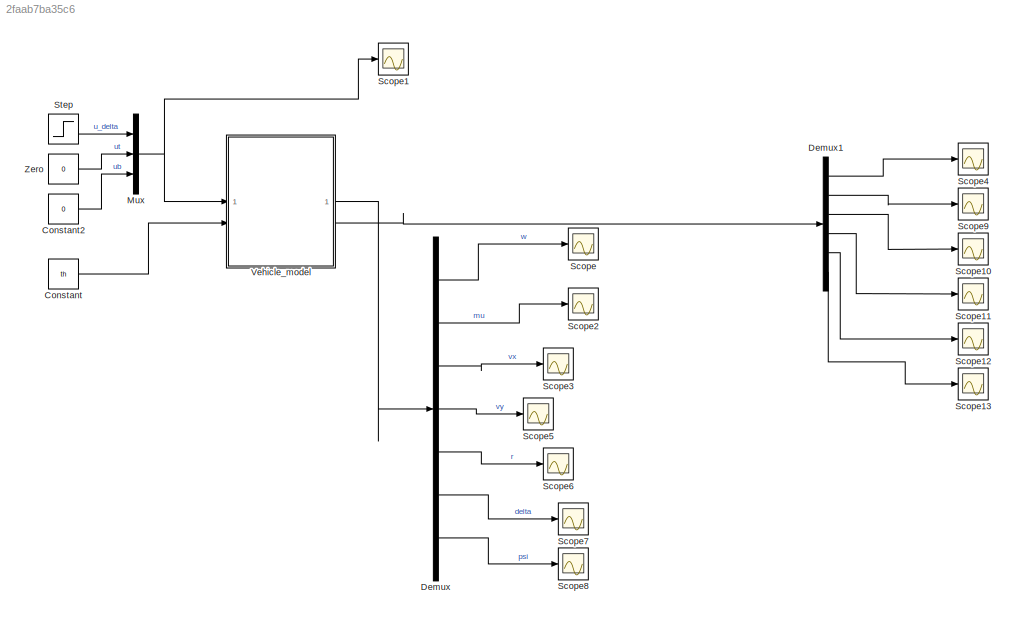
MODEL slx_2faab7ba35c6
KIND model
CONFIG AbsTol = auto
CONFIG EnableMultiTasking = off
CONFIG FixedStep = auto
CONFIG MaxStep = auto
CONFIG MinStep = auto
CONFIG RelTol = 1e-3
CONFIG SampleTimeConstraint = Unconstrained
CONFIG SolverName = VariableStepAuto
CONFIG StartTime = 0.0
CONFIG StopTime = 1.4
BLOCK [Constant] Constant
  Value = th
BLOCK [Constant] Constant2
  Value = 0
BLOCK [Demux] Demux
  Outputs = 7
BLOCK [Demux] Demux1
  Outputs = 6
BLOCK [Mux] Mux
  DisplayOption = bar
  Inputs = 3
BLOCK [Scope] Scope
  Floating = off
  NumInputPorts = 1
  ScopeSpecificationString = Simulink.scopes.TimeScopeBlockCfg('CurrentConfiguration', extmgr.ConfigurationSet(extmgr.Configuration('Core','General UI',true),extmgr.Configuration('Core','Source UI',true),extmgr.Configuration('Sources','WiredSimulink',true),extmgr.Configuration('Visuals','Time Domain',true,'SerializedDisplays',{struct('MinYLimReal','-0.7032','MaxYLimReal','0.07813','YLabelReal','','MinYLimMag','0.00000','MaxYL...<+1343ch>
BLOCK [Scope] Scope1
  Floating = off
  NumInputPorts = 1
  ScopeSpecificationString = Simulink.scopes.TimeScopeBlockCfg('CurrentConfiguration', extmgr.ConfigurationSet(extmgr.Configuration('Core','General UI',true),extmgr.Configuration('Core','Source UI',true),extmgr.Configuration('Sources','WiredSimulink',true,'DataLoggingVariableName','ScopeData1'),extmgr.Configuration('Visuals','Time Domain',true,'SerializedDisplays',{struct('MinYLimReal','-1.00000','MaxYLimReal','1.00000','YLab...<+1508ch>
BLOCK [Scope] Scope10
  Floating = off
  NumInputPorts = 1
  ScopeSpecificationString = Simulink.scopes.TimeScopeBlockCfg('CurrentConfiguration', extmgr.ConfigurationSet(extmgr.Configuration('Core','General UI',true),extmgr.Configuration('Core','Source UI',true),extmgr.Configuration('Sources','WiredSimulink',true,'DataLoggingVariableName','ScopeData3'),extmgr.Configuration('Visuals','Time Domain',true,'SerializedDisplays',{struct('MinYLimReal','-466.54259','MaxYLimReal','279.20196','...<+1381ch>
BLOCK [Scope] Scope11
  Floating = off
  NumInputPorts = 1
  ScopeSpecificationString = Simulink.scopes.TimeScopeBlockCfg('CurrentConfiguration', extmgr.ConfigurationSet(extmgr.Configuration('Core','General UI',true),extmgr.Configuration('Core','Source UI',true),extmgr.Configuration('Sources','WiredSimulink',true,'DataLoggingVariableName','ScopeData4'),extmgr.Configuration('Visuals','Time Domain',true,'SerializedDisplays',{struct('MinYLimReal','-466.54259','MaxYLimReal','279.20196','...<+1381ch>
BLOCK [Scope] Scope12
  Floating = off
  NumInputPorts = 1
  ScopeSpecificationString = Simulink.scopes.TimeScopeBlockCfg('CurrentConfiguration', extmgr.ConfigurationSet(extmgr.Configuration('Core','General UI',true),extmgr.Configuration('Core','Source UI',true),extmgr.Configuration('Sources','WiredSimulink',true,'DataLoggingVariableName','ScopeData5'),extmgr.Configuration('Visuals','Time Domain',true,'SerializedDisplays',{struct('MinYLimReal','-1119.57916','MaxYLimReal','118.72473',...<+1387ch>
BLOCK [Scope] Scope13
  Floating = off
  NumInputPorts = 1
  ScopeSpecificationString = Simulink.scopes.TimeScopeBlockCfg('CurrentConfiguration', extmgr.ConfigurationSet(extmgr.Configuration('Core','General UI',true),extmgr.Configuration('Core','Source UI',true),extmgr.Configuration('Sources','WiredSimulink',true,'DataLoggingVariableName','ScopeData6'),extmgr.Configuration('Visuals','Time Domain',true,'SerializedDisplays',{struct('MinYLimReal','-1119.57916','MaxYLimReal','118.72473',...<+1387ch>
BLOCK [Scope] Scope2
  Floating = off
  NumInputPorts = 1
  ScopeSpecificationString = Simulink.scopes.TimeScopeBlockCfg('CurrentConfiguration', extmgr.ConfigurationSet(extmgr.Configuration('Core','General UI',true),extmgr.Configuration('Core','Source UI',true),extmgr.Configuration('Sources','WiredSimulink',true,'DataLoggingVariableName','ScopeData2'),extmgr.Configuration('Visuals','Time Domain',true,'SerializedDisplays',{struct('MinYLimReal','-0.85281','MaxYLimReal','0.34645','YLab...<+1387ch>
BLOCK [Scope] Scope3
  Floating = off
  NumInputPorts = 1
  ScopeSpecificationString = Simulink.scopes.TimeScopeBlockCfg('CurrentConfiguration', extmgr.ConfigurationSet(extmgr.Configuration('Core','General UI',true),extmgr.Configuration('Core','Source UI',true),extmgr.Configuration('Sources','WiredSimulink',true,'DataLoggingVariableName','ScopeData3'),extmgr.Configuration('Visuals','Time Domain',true,'SerializedDisplays',{struct('MinYLimReal','-26.06896','MaxYLimReal','14.00766','YL...<+1489ch>
BLOCK [Scope] Scope4
  Floating = off
  NumInputPorts = 1
  ScopeSpecificationString = Simulink.scopes.TimeScopeBlockCfg('CurrentConfiguration', extmgr.ConfigurationSet(extmgr.Configuration('Core','General UI',true),extmgr.Configuration('Core','Source UI',true),extmgr.Configuration('Sources','WiredSimulink',true,'DataLoggingVariableName','ScopeData1'),extmgr.Configuration('Visuals','Time Domain',true,'SerializedDisplays',{struct('MinYLimReal','-128.72984','MaxYLimReal','14.30332','Y...<+1405ch>
BLOCK [Scope] Scope5
  Floating = off
  NumInputPorts = 1
  ScopeSpecificationString = Simulink.scopes.TimeScopeBlockCfg('CurrentConfiguration', extmgr.ConfigurationSet(extmgr.Configuration('Core','General UI',true),extmgr.Configuration('Core','Source UI',true),extmgr.Configuration('Sources','WiredSimulink',true,'DataLoggingVariableName','ScopeData5'),extmgr.Configuration('Visuals','Time Domain',true,'SerializedDisplays',{struct('MinYLimReal','-0.000000006','MaxYLimReal','0.00000005...<+1464ch>
BLOCK [Scope] Scope6
  Floating = off
  NumInputPorts = 1
  ScopeSpecificationString = Simulink.scopes.TimeScopeBlockCfg('CurrentConfiguration', extmgr.ConfigurationSet(extmgr.Configuration('Core','General UI',true),extmgr.Configuration('Core','Source UI',true),extmgr.Configuration('Sources','WiredSimulink',true,'DataLoggingVariableName','ScopeData6'),extmgr.Configuration('Visuals','Time Domain',true,'SerializedDisplays',{struct('MinYLimReal','-27.79961','MaxYLimReal','27.79382','YL...<+1393ch>
BLOCK [Scope] Scope7
  Floating = off
  NumInputPorts = 1
  ScopeSpecificationString = Simulink.scopes.TimeScopeBlockCfg('CurrentConfiguration', extmgr.ConfigurationSet(extmgr.Configuration('Core','General UI',true),extmgr.Configuration('Core','Source UI',true),extmgr.Configuration('Sources','WiredSimulink',true,'DataLoggingVariableName','ScopeData7'),extmgr.Configuration('Visuals','Time Domain',true,'SerializedDisplays',{struct('MinYLimReal','-3.49521','MaxYLimReal','0.38836','YLab...<+1364ch>
BLOCK [Scope] Scope8
  Floating = off
  NumInputPorts = 1
  ScopeSpecificationString = Simulink.scopes.TimeScopeBlockCfg('CurrentConfiguration', extmgr.ConfigurationSet(extmgr.Configuration('Core','General UI',true),extmgr.Configuration('Core','Source UI',true),extmgr.Configuration('Sources','WiredSimulink',true,'DataLoggingVariableName','ScopeData8'),extmgr.Configuration('Visuals','Time Domain',true,'SerializedDisplays',{struct('MinYLimReal','-0.85281','MaxYLimReal','0.34645','YLab...<+1362ch>
BLOCK [Scope] Scope9
  Floating = off
  NumInputPorts = 1
  ScopeSpecificationString = Simulink.scopes.TimeScopeBlockCfg('CurrentConfiguration', extmgr.ConfigurationSet(extmgr.Configuration('Core','General UI',true),extmgr.Configuration('Core','Source UI',true),extmgr.Configuration('Sources','WiredSimulink',true,'DataLoggingVariableName','ScopeData2'),extmgr.Configuration('Visuals','Time Domain',true,'SerializedDisplays',{struct('MinYLimReal','-166.2294','MaxYLimReal','351.59778','Y...<+1379ch>
BLOCK [Step] Step
  After = u_delta_step/10
  SampleTime = 0
  Time = 0
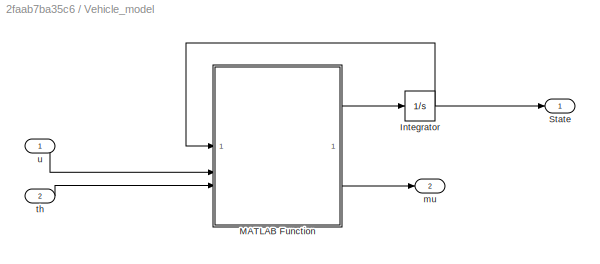
BLOCK [SubSystem] Vehicle_model
BLOCK [Integrator] Vehicle_model/Integrator
  InitialCondition = z0
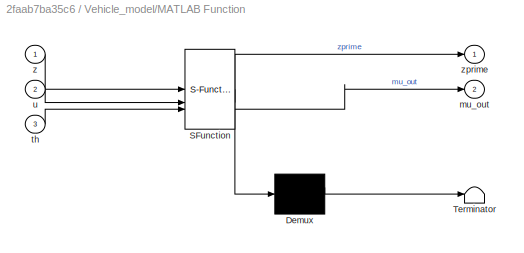
BLOCK [SubSystem] Vehicle_model/MATLAB Function
  ErrorFcn = Stateflow.Translate.translate
  PermitHierarchicalResolution = ExplicitOnly
  SFBlockType = MATLAB Function
  TreatAsAtomicUnit = on
BLOCK [Demux] Vehicle_model/MATLAB Function/ Demux 
  Outputs = 1
BLOCK [S-Function] Vehicle_model/MATLAB Function/ SFunction 
  EnableBusSupport = on
  FunctionName = sf_sfun
  PortCounts = [3 3]
  SFcnIsStateOwnerBlock = off
  SFunctionDeploymentMode = off
  Tag = Stateflow S-Function 2
BLOCK [Terminator] Vehicle_model/MATLAB Function/ Terminator 
BLOCK [Outport] Vehicle_model/MATLAB Function/mu_out
  Port = 2
BLOCK [Inport] Vehicle_model/MATLAB Function/th
  Port = 3
BLOCK [Inport] Vehicle_model/MATLAB Function/u
  Port = 2
BLOCK [Inport] Vehicle_model/MATLAB Function/z
BLOCK [Outport] Vehicle_model/MATLAB Function/zprime
  VectorParamsAs1DForOutWhenUnconnected = off
BLOCK [Outport] Vehicle_model/State
  VectorParamsAs1DForOutWhenUnconnected = off
BLOCK [Outport] Vehicle_model/mu
  Port = 2
BLOCK [Inport] Vehicle_model/th
  Port = 2
BLOCK [Inport] Vehicle_model/u
BLOCK [Constant] Zero
  OutDataTypeStr = Inherit: Inherit via back propagation
  Value = 0
LINE Constant2:1 -> Mux:3
LINE Constant:1 -> Vehicle_model:2
LINE Demux1:1 -> Scope4:1
LINE Demux1:2 -> Scope9:1
LINE Demux1:3 -> Scope10:1
LINE Demux1:4 -> Scope11:1
LINE Demux1:5 -> Scope12:1
LINE Demux1:6 -> Scope13:1
LINE Demux:1 -> Scope:1
LINE Demux:2 -> Scope2:1
LINE Demux:3 -> Scope3:1
LINE Demux:4 -> Scope5:1
LINE Demux:5 -> Scope6:1
LINE Demux:6 -> Scope7:1
LINE Demux:7 -> Scope8:1
NET Mux:1 -> Scope1:1, Vehicle_model:1
LINE Step:1 -> Mux:1
NET Vehicle_model/Integrator:1 -> Vehicle_model/MATLAB Function:1, Vehicle_model/State:1
LINE Vehicle_model/MATLAB Function:1 -> Vehicle_model/Integrator:1
LINE Vehicle_model/MATLAB Function:2 -> Vehicle_model/mu:1
LINE Vehicle_model/th:1 -> Vehicle_model/MATLAB Function:3
LINE Vehicle_model/u:1 -> Vehicle_model/MATLAB Function:2
LINE Vehicle_model:1 -> Demux:1
LINE Vehicle_model:2 -> Demux1:1
LINE Zero:1 -> Mux:2
note: NET lines group one-source signal fan-out (src -> all destinations, sorted); 1:1 wires keep LINE
CHART Vehicle_model/MATLAB Function states=1 transitions=1
  STATE_LABEL 'eML_blk_kernel()'
  STATE_LABEL 'SCRIPT:\nfunction [zprime,mu_out] =vehicle_dynamics(z,u,th)        %For the time being, assume no disturbances\n% Nonlinear dynamic model of a road vehicle with six states: \n% w: is the distance of the com to the center line \n% mu: is the local heading angle \n% vx: is the longitudinal velocity of the com \n% vy: is the lateral velocity of the com \n% r: is the yaw rate\n% Delta: is the steering angle \n...<+3608ch>'
CHART  states=0 transitions=0
